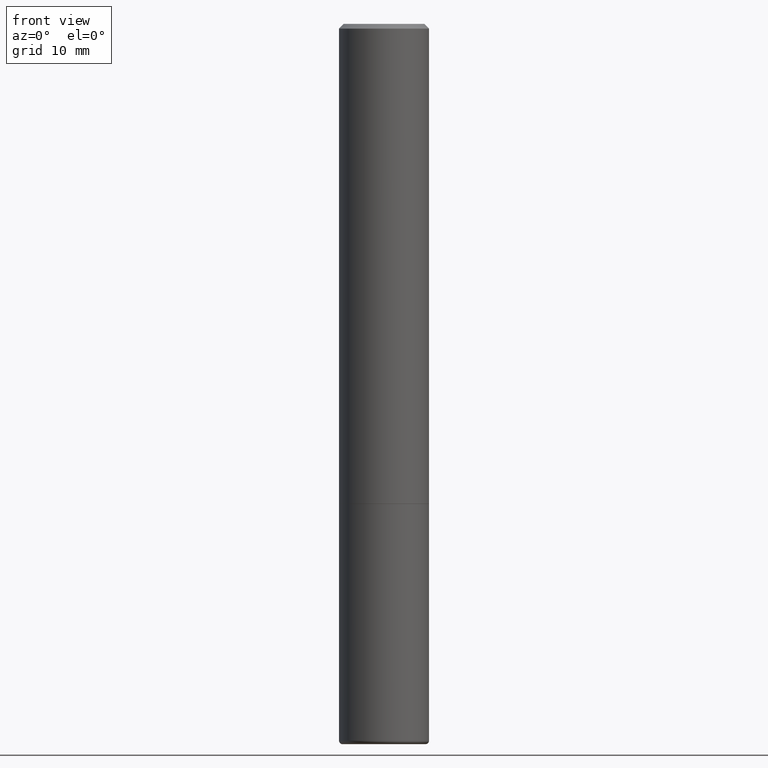
[diagram: clean part render]
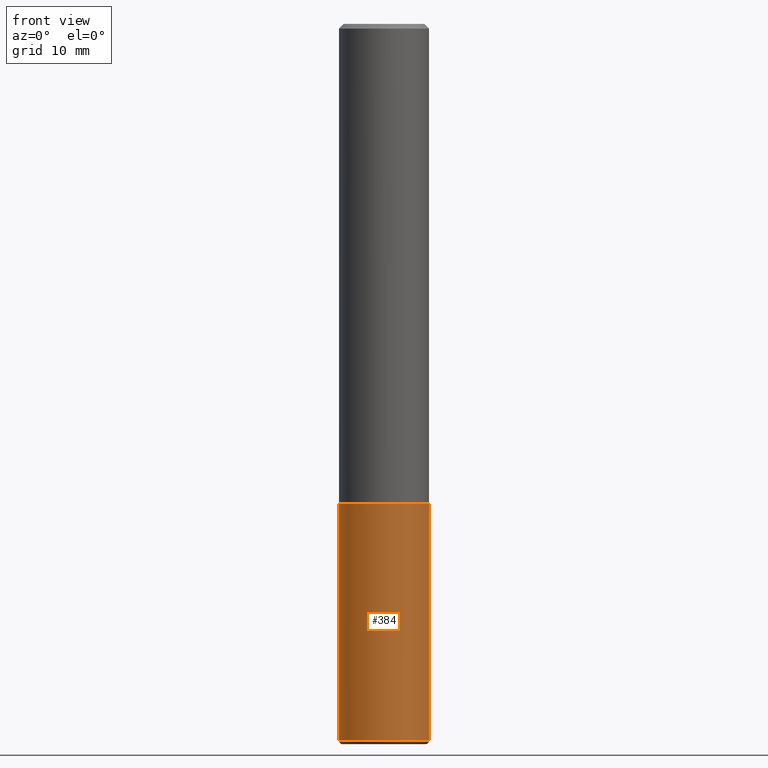
[diagram: same view with one face highlighted and labeled with its STEP entity id]
A machine part, front view. The second image highlights one B-rep face of the part: STEP entity #384.
In plain terms, the highlighted cylindrical surface (partial cylindrical patch) has radius 4.7625 mm, axis along (-0, 0, 1).
Its self-contained STEP definition (entity closure, byte-faithful):
#20 = DIRECTION ( 'NONE',  ( -2.445468806185136597E-29, 3.491481338843145583E-15, 1.000000000000000000 ) ) ;
#23 = CARTESIAN_POINT ( 'NONE',  ( 7.299725783202014843E-29, -1.042207379062045357E-14, -2.985000571154037718 ) ) ;
#37 = EDGE_CURVE ( 'NONE', #302, #208, #442, .T. ) ;
#48 = CARTESIAN_POINT ( 'NONE',  ( 0.000000000000000000, 0.000000000000000000, 0.000000000000000000 ) ) ;
#59 = AXIS2_PLACEMENT_3D ( 'NONE', #23, #409, #329 ) ;
#61 = VERTEX_POINT ( 'NONE', #140 ) ;
#90 = CYLINDRICAL_SURFACE ( 'NONE', #154, 0.1874999999999999722 ) ;
#92 = ORIENTED_EDGE ( 'NONE', *, *, #291, .T. ) ;
#106 = ORIENTED_EDGE ( 'NONE', *, *, #37, .F. ) ;
#140 = CARTESIAN_POINT ( 'NONE',  ( 0.1874999999999999722, -1.173137929268662858E-14, -2.985000571154037718 ) ) ;
#153 = CARTESIAN_POINT ( 'NONE',  ( 0.1874999999999999722, -1.309305502066174811E-15, 9.142831454617378210E-30 ) ) ;
#154 = AXIS2_PLACEMENT_3D ( 'NONE', #48, #20, #168 ) ;
#165 = AXIS2_PLACEMENT_3D ( 'NONE', #445, #267, #449 ) ;
#168 = DIRECTION ( 'NONE',  ( 1.000000000000000000, -6.982962677686266711E-15, 4.876176775795935793E-29 ) ) ;
#169 = EDGE_LOOP ( 'NONE', ( #233, #92, #347, #106 ) ) ;
#170 = CARTESIAN_POINT ( 'NONE',  ( -0.1874999999999999722, 1.332267629550187651E-15, -9.223003294227946589E-30 ) ) ;
#208 = VERTEX_POINT ( 'NONE', #402 ) ;
#218 = EDGE_CURVE ( 'NONE', #261, #302, #244, .T. ) ;
#222 = CARTESIAN_POINT ( 'NONE',  ( -0.1874999999999999722, -7.370250604603186490E-15, -2.985000571154037718 ) ) ;
#233 = ORIENTED_EDGE ( 'NONE', *, *, #218, .F. ) ;
#244 = LINE ( 'NONE', #170, #285 ) ;
#247 = CARTESIAN_POINT ( 'NONE',  ( -0.1875000000000000278, -7.370250604603186490E-15, -2.000000000000000444 ) ) ;
#261 = VERTEX_POINT ( 'NONE', #222 ) ;
#267 = DIRECTION ( 'NONE',  ( -2.445468806185136597E-29, 3.491481338843145583E-15, 1.000000000000000000 ) ) ;
#269 = DIRECTION ( 'NONE',  ( -2.445468806185136877E-29, 3.491481338843145188E-15, 1.000000000000000000 ) ) ;
#285 = VECTOR ( 'NONE', #333, 39.37007874015748143 ) ;
#291 = EDGE_CURVE ( 'NONE', #261, #61, #482, .T. ) ;
#302 = VERTEX_POINT ( 'NONE', #247 ) ;
#307 = VECTOR ( 'NONE', #269, 39.37007874015748143 ) ;
#329 = DIRECTION ( 'NONE',  ( 1.000000000000000000, -6.982962677686263555E-15, 0.000000000000000000 ) ) ;
#333 = DIRECTION ( 'NONE',  ( -2.445468806185136877E-29, 3.491481338843145188E-15, 1.000000000000000000 ) ) ;
#347 = ORIENTED_EDGE ( 'NONE', *, *, #461, .T. ) ;
#352 = LINE ( 'NONE', #153, #307 ) ;
#384 = ADVANCED_FACE ( 'NONE', ( #439 ), #90, .T. ) ;
#402 = CARTESIAN_POINT ( 'NONE',  ( 0.1875000000000000278, -8.292268179752466962E-15, -2.000000000000000444 ) ) ;
#409 = DIRECTION ( 'NONE',  ( -2.445468806185136597E-29, 3.491481338843145583E-15, 1.000000000000000000 ) ) ;
#439 = FACE_OUTER_BOUND ( 'NONE', #169, .T. ) ;
#442 = CIRCLE ( 'NONE', #165, 0.1875000000000000278 ) ;
#445 = CARTESIAN_POINT ( 'NONE',  ( 4.890937612370273754E-29, -6.982962677686291954E-15, -2.000000000000000444 ) ) ;
#449 = DIRECTION ( 'NONE',  ( 1.000000000000000000, -6.982962677686266711E-15, 0.000000000000000000 ) ) ;
#461 = EDGE_CURVE ( 'NONE', #61, #208, #352, .T. ) ;
#482 = CIRCLE ( 'NONE', #59, 0.1874999999999999722 ) ;